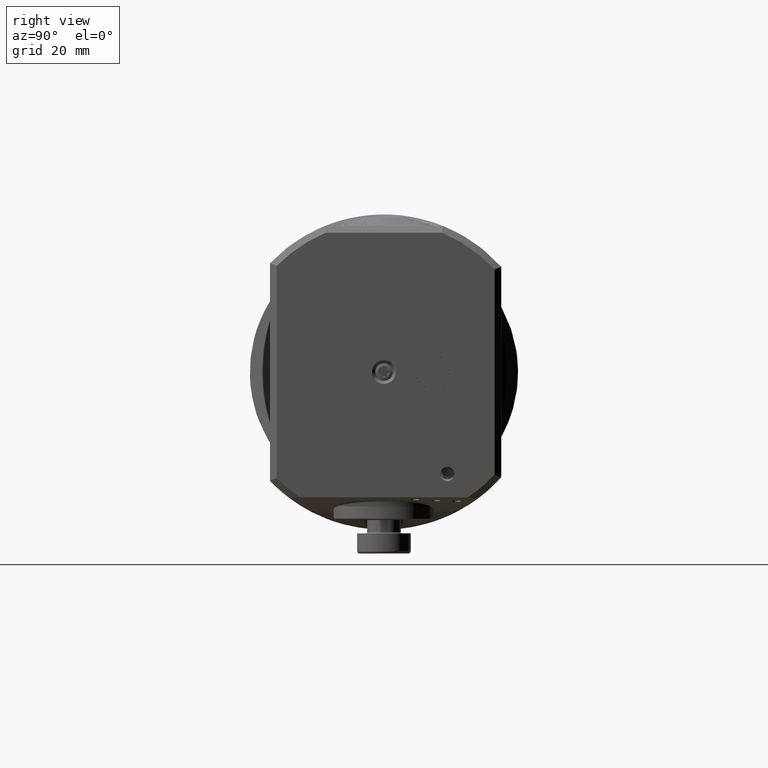
[diagram: clean part render]
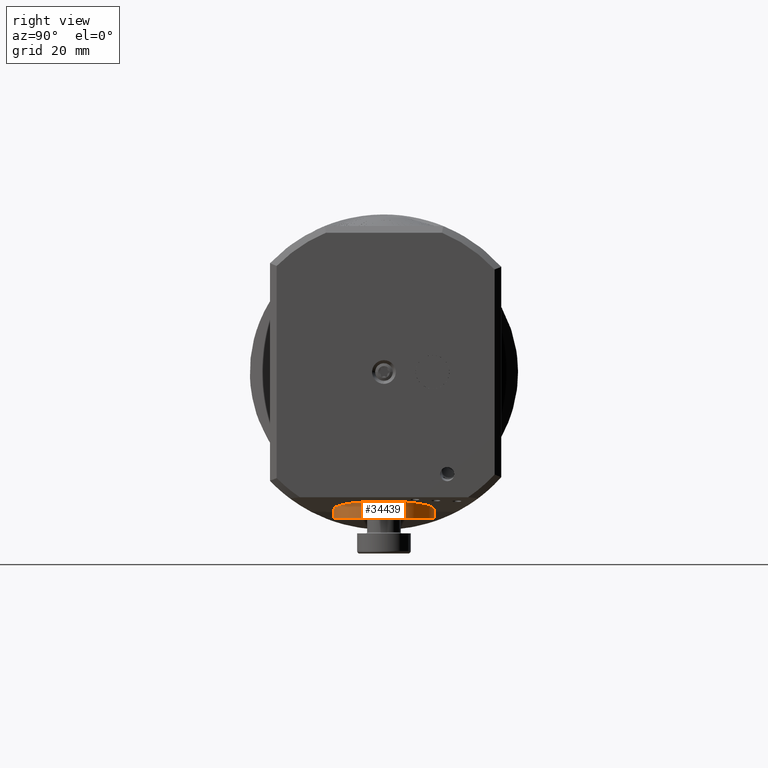
[diagram: same view with one face highlighted and labeled with its STEP entity id]
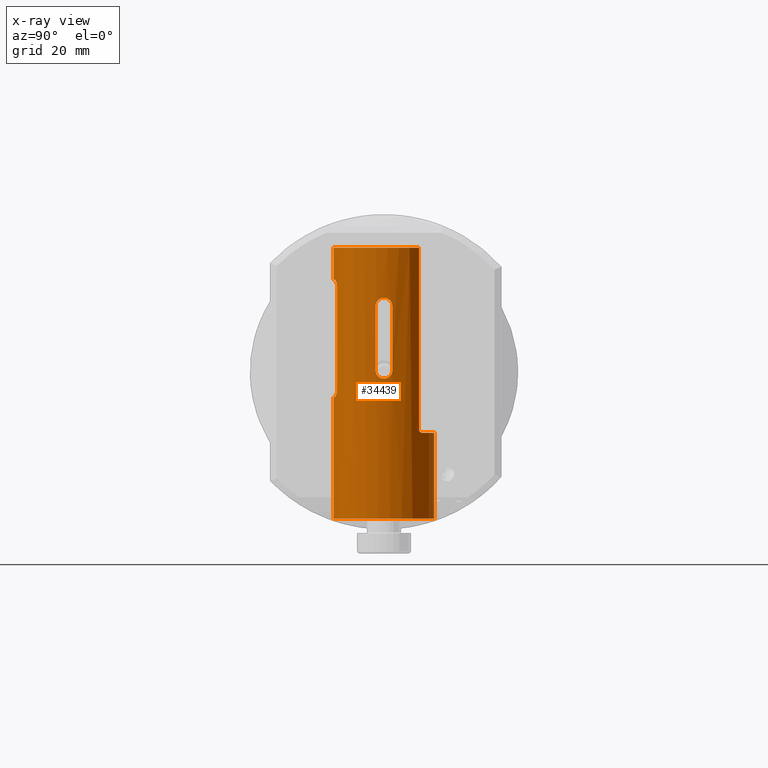
[diagram: x-ray of the same camera — body ghosted, the highlighted face saturated]
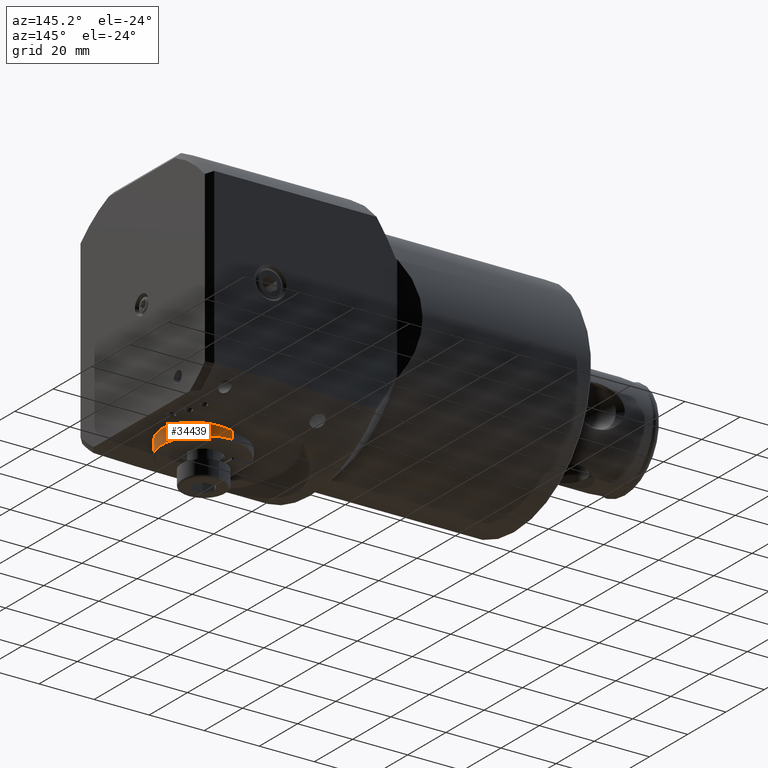
[diagram: same view with one face highlighted and labeled with its STEP entity id]
A machine part, right view. The second image highlights one B-rep face of the part: STEP entity #34439.
The next image is the same camera in x-ray: the body ghosted, the highlighted face saturated — about 0% of this face is hidden behind the body in this view.
A second angle (auxiliary view) of the same face is appended — the face is thin or edge-on in the first view.
In plain terms, the highlighted cylindrical surface (partial cylindrical patch) has radius 15 mm, axis along (-0, -0, -1).
Its self-contained STEP definition (entity closure, byte-faithful):
#62 = CARTESIAN_POINT ( 'NONE',  ( -36.69999999999999600, 0.0000000000000000000, 0.0000000000000000000 ) ) ;
#250 = LINE ( 'NONE', #6312, #1972 ) ;
#355 = EDGE_CURVE ( 'NONE', #2402, #25794, #25545, .T. ) ;
#487 = CARTESIAN_POINT ( 'NONE',  ( -71.70000000000000300, 0.0000000000000000000, 0.0000000000000000000 ) ) ;
#640 = CARTESIAN_POINT ( 'NONE',  ( -65.27439276141153400, 14.86793546203598600, -1.988184914714679500 ) ) ;
#693 = CARTESIAN_POINT ( 'NONE',  ( -71.62103553861182100, 3.643993573957646300, 14.55156011892306500 ) ) ;
#791 = CARTESIAN_POINT ( 'NONE',  ( -26.08365138635638300, 10.12319895152375300, -11.07016881742111500 ) ) ;
#910 = CARTESIAN_POINT ( 'NONE',  ( -36.69999999999999600, 2.999999999999992500, 14.69693845669905300 ) ) ;
#942 = DIRECTION ( 'NONE',  ( 1.000000000000000000, 0.0000000000000000000, 0.0000000000000000000 ) ) ;
#1052 = CARTESIAN_POINT ( 'NONE',  ( -70.86602314674337300, 4.870990932716868100, 14.18760841580626500 ) ) ;
#1258 = DIRECTION ( 'NONE',  ( -1.000000000000000000, -0.0000000000000000000, -0.0000000000000000000 ) ) ;
#1349 = EDGE_CURVE ( 'NONE', #34556, #23968, #9331, .T. ) ;
#1350 = CARTESIAN_POINT ( 'NONE',  ( -66.17004158267620500, 14.98684790557083200, 0.6481895724727199100 ) ) ;
#1447 = CARTESIAN_POINT ( 'NONE',  ( -36.69999999999999600, 1.836970198721028800E-015, 14.99999999999999300 ) ) ;
#1461 = CARTESIAN_POINT ( 'NONE',  ( -64.40195296655838300, 14.80369322509446700, 2.419034972733008700 ) ) ;
#1567 = B_SPLINE_CURVE_WITH_KNOTS ( 'NONE', 3,
 ( #17075, #11177, #13902, #32823, #22051, #3148, #11407, #640, #6094, #25000, #30558, #8797, #11533, #3511, #22411, #30780, #28172, #1350, #33865, #9136, #4088, #33398, #28286, #6320, #11877, #22532, #20215, #22974, #1461, #12109, #14587, #33527 ),
 .UNSPECIFIED., .F., .F.,
 ( 4, 2, 2, 2, 2, 2, 2, 2, 2, 2, 2, 2, 2, 2, 2, 4 ),
 ( 0.0000000000000000000, 0.0004892401012912576600, 0.0009784802025825153200, 0.001467720303873773000, 0.001956960405165030600, 0.002935440607747515600, 0.003424680709038758100, 0.003913920810330000600, 0.004403160911621243500, 0.004892401012912486400, 0.005381641114203729300, 0.005870881215494972200, 0.006360121316786215100, 0.006849361418077458100, 0.007338601519368701000, 0.007827841620659943900 ),
 .UNSPECIFIED. ) ;
#1585 = ORIENTED_EDGE ( 'NONE', *, *, #12999, .T. ) ;
#1972 = VECTOR ( 'NONE', #17180, 1000.000000000000000 ) ;
#2064 = CARTESIAN_POINT ( 'NONE',  ( -81.19999999999998900, 0.0000000000000000000, -1.232595164407830900E-028 ) ) ;
#2315 = DIRECTION ( 'NONE',  ( 0.0000000000000000000, 5.852798276616345200E-036, -1.000000000000000000 ) ) ;
#2363 = CARTESIAN_POINT ( 'NONE',  ( -42.46587615900763500, 14.95008997908091400, 1.259190540869073100 ) ) ;
#2402 = VERTEX_POINT ( 'NONE', #1447 ) ;
#2702 = CARTESIAN_POINT ( 'NONE',  ( -44.65000000000000600, 14.79019945774903300, 2.500000000000000000 ) ) ;
#2727 = CARTESIAN_POINT ( 'NONE',  ( 8.315476190476179100, 1.836970198721028800E-015, 14.99999999999999300 ) ) ;
#2909 = DIRECTION ( 'NONE',  ( 1.000000000000000000, 0.0000000000000000000, 0.0000000000000000000 ) ) ;
#3028 = CIRCLE ( 'NONE', #27878, 14.99999999999999300 ) ;
#3036 = CARTESIAN_POINT ( 'NONE',  ( -44.65000000000000600, 14.79019945774903300, -2.500000000000000000 ) ) ;
#3148 = CARTESIAN_POINT ( 'NONE',  ( -64.85942039942538900, 14.83098181101911600, -2.246333638700845000 ) ) ;
#3433 = VERTEX_POINT ( 'NONE', #22031 ) ;
#3442 = CARTESIAN_POINT ( 'NONE',  ( -69.87085199577855100, 5.430602251701269100, 13.98310576458394600 ) ) ;
#3511 = CARTESIAN_POINT ( 'NONE',  ( -66.23389635983521400, 14.99729083760842000, -0.3276336015289716400 ) ) ;
#3661 = CARTESIAN_POINT ( 'NONE',  ( -26.00000000000000000, 9.615697287706293400, -11.51253081086854400 ) ) ;
#3937 = AXIS2_PLACEMENT_3D ( 'NONE', #4066, #31229, #22960 ) ;
#4066 = CARTESIAN_POINT ( 'NONE',  ( 8.315476190476179100, 0.0000000000000000000, 0.0000000000000000000 ) ) ;
#4088 = CARTESIAN_POINT ( 'NONE',  ( -65.91934541202428500, 14.94817897732823800, 1.253158173683135900 ) ) ;
#4269 = VERTEX_POINT ( 'NONE', #15585 ) ;
#4679 = ORIENTED_EDGE ( 'NONE', *, *, #11589, .F. ) ;
#5051 = DIRECTION ( 'NONE',  ( 1.000000000000000000, -0.0000000000000000000, -0.0000000000000000000 ) ) ;
#5059 = CARTESIAN_POINT ( 'NONE',  ( -43.84315385433006200, 14.81142155766626800, 2.371882740827993900 ) ) ;
#5289 = VECTOR ( 'NONE', #21154, 1000.000000000000000 ) ;
#5311 = CARTESIAN_POINT ( 'NONE',  ( -42.22995841732377900, 14.98684790557083200, -0.6481895724727185800 ) ) ;
#5596 = ORIENTED_EDGE ( 'NONE', *, *, #20045, .T. ) ;
#5816 = ORIENTED_EDGE ( 'NONE', *, *, #18937, .T. ) ;
#6094 = CARTESIAN_POINT ( 'NONE',  ( -65.40272250051258100, 14.88181563152256900, -1.882815057245365200 ) ) ;
#6113 = EDGE_CURVE ( 'NONE', #22004, #30293, #33902, .T. ) ;
#6312 = CARTESIAN_POINT ( 'NONE',  ( 8.315476190476179100, 14.79019945774903300, 2.499999999999992900 ) ) ;
#6320 = CARTESIAN_POINT ( 'NONE',  ( -65.40247953690503400, 14.88177912671609200, 1.883189249685687700 ) ) ;
#6929 = EDGE_CURVE ( 'NONE', #30293, #19441, #32509, .T. ) ;
#7056 = EDGE_CURVE ( 'NONE', #22454, #34314, #33748, .T. ) ;
#7550 = CARTESIAN_POINT ( 'NONE',  ( -44.32192118619911300, 14.79297421678855100, 2.483738080278603500 ) ) ;
#7688 = CARTESIAN_POINT ( 'NONE',  ( -42.15012643082874200, 14.99997892820125500, 0.1652582995193745700 ) ) ;
#7752 = ORIENTED_EDGE ( 'NONE', *, *, #20365, .T. ) ;
#7804 = CARTESIAN_POINT ( 'NONE',  ( -42.66135259936607600, 14.92302629179534200, -1.523727810631438900 ) ) ;
#7904 = EDGE_LOOP ( 'NONE', ( #31844, #16660, #4679, #14656 ) ) ;
#7910 = VERTEX_POINT ( 'NONE', #21290 ) ;
#7919 = CARTESIAN_POINT ( 'NONE',  ( -42.40254796129772100, 14.95985313340195300, -1.107177897277891600 ) ) ;
#8012 = CARTESIAN_POINT ( 'NONE',  ( -26.00000000000000000, 9.615697287706293400, -11.51253081086854400 ) ) ;
#8026 = CARTESIAN_POINT ( 'NONE',  ( -42.14987504960765800, 15.00002082505937100, -0.1614106558651979000 ) ) ;
#8706 = CARTESIAN_POINT ( 'NONE',  ( -38.86613687932003800, 5.483139256648417600, 13.96196367605907300 ) ) ;
#8797 = CARTESIAN_POINT ( 'NONE',  ( -66.12133664322259100, 14.97896644742040500, -0.8082400430942695600 ) ) ;
#8813 = CARTESIAN_POINT ( 'NONE',  ( -39.19999999999999600, 5.499999999999991100, 13.95528573695285800 ) ) ;
#8828 = CARTESIAN_POINT ( 'NONE',  ( -26.82716649990155500, 10.75975848779951800, -10.45120075800986600 ) ) ;
#8932 = CARTESIAN_POINT ( 'NONE',  ( -36.69999999999999600, 3.164942454939800400, 14.66326971907201200 ) ) ;
#8946 = LINE ( 'NONE', #30606, #19919 ) ;
#8963 = CARTESIAN_POINT ( 'NONE',  ( -70.47120695929369600, 5.158889334905638600, 14.08529109122957500 ) ) ;
#9091 = CARTESIAN_POINT ( 'NONE',  ( -81.19999999999998900, 1.836970198721028400E-015, 14.99999999999998800 ) ) ;
#9136 = CARTESIAN_POINT ( 'NONE',  ( -65.99745203870230600, 14.95985313340195000, 1.107177897277893200 ) ) ;
#9159 = CARTESIAN_POINT ( 'NONE',  ( -37.93249541261423000, 5.161098648160028700, 14.08448203711480100 ) ) ;
#9331 = B_SPLINE_CURVE_WITH_KNOTS ( 'NONE', 3,
 ( #22468, #14299, #27650, #693, #33224, #14641, #27764, #14184, #20048, #1052, #11575, #8963, #30605, #3442, #17010, #33577 ),
 .UNSPECIFIED., .F., .F.,
 ( 4, 2, 2, 2, 2, 2, 2, 4 ),
 ( 0.0000000000000000000, 0.0004980600485306298600, 0.0009961200970612597200, 0.001494180145591890900, 0.001992240194122522000, 0.002490300242653153200, 0.002988360291183784400, 0.003984480388245008500 ),
 .UNSPECIFIED. ) ;
#9531 = VERTEX_POINT ( 'NONE', #11911 ) ;
#9743 = DIRECTION ( 'NONE',  ( 1.000000000000000000, 0.0000000000000000000, 0.0000000000000000000 ) ) ;
#9943 = CARTESIAN_POINT ( 'NONE',  ( -71.70000000000000300, 2.999999999999992500, 14.69693845669905300 ) ) ;
#10212 = DIRECTION ( 'NONE',  ( 1.000000000000000000, 0.0000000000000000000, 0.0000000000000000000 ) ) ;
#10263 = CARTESIAN_POINT ( 'NONE',  ( -43.99804703344163700, 14.80369322509447000, -2.419034972733006900 ) ) ;
#10334 = VECTOR ( 'NONE', #2909, 1000.000000000000000 ) ;
#10383 = CARTESIAN_POINT ( 'NONE',  ( -42.65205998376171000, 14.92278605409199200, 1.537586584708477300 ) ) ;
#10734 = CARTESIAN_POINT ( 'NONE',  ( -26.99999999999999600, 10.75975848779951200, -10.45120075800986600 ) ) ;
#10735 = CARTESIAN_POINT ( 'NONE',  ( -42.76488841548087500, 14.90940330940715500, -1.650286243029786200 ) ) ;
#10824 = B_SPLINE_CURVE_WITH_KNOTS ( 'NONE', 3,
 ( #2702, #32136, #7550, #24095, #5059, #18646, #35008, #12986, #26571, #10383, #2363, #15950, #23981, #13102, #7688, #8026, #26922, #5311, #35126, #7919, #24218, #7804, #10735, #29678, #26691, #13464, #16191, #21612, #10263, #18876, #23858, #26457 ),
 .UNSPECIFIED., .F., .F.,
 ( 4, 2, 2, 2, 2, 2, 2, 2, 2, 2, 2, 2, 2, 2, 2, 4 ),
 ( 0.0000000000000000000, 0.0004892401012912463800, 0.0009784802025824927700, 0.001467720303873739400, 0.001956960405164985500, 0.002935440607747477000, 0.003424680709038723400, 0.003913920810329969300, 0.004403160911621215700, 0.004892401012912462100, 0.005381641114203708500, 0.005870881215494954000, 0.006360121316786201300, 0.006849361418077447700, 0.007338601519368694000, 0.007827841620659940400 ),
 .UNSPECIFIED. ) ;
#11012 = CARTESIAN_POINT ( 'NONE',  ( -26.00000000000001100, 0.0000000000000000000, 0.0000000000000000000 ) ) ;
#11177 = CARTESIAN_POINT ( 'NONE',  ( -63.91545102669287100, 14.79019945774903300, -2.499999999999998200 ) ) ;
#11252 = FACE_OUTER_BOUND ( 'NONE', #29531, .T. ) ;
#11407 = CARTESIAN_POINT ( 'NONE',  ( -65.00288271435107400, 14.84255526208823500, -2.169547752464354500 ) ) ;
#11432 = CARTESIAN_POINT ( 'NONE',  ( -37.53457246494458800, 4.871495484013774300, 14.18743285241416200 ) ) ;
#11533 = CARTESIAN_POINT ( 'NONE',  ( -66.16951081223518800, 14.98676162190930200, -0.6504247325638559100 ) ) ;
#11554 = CARTESIAN_POINT ( 'NONE',  ( -36.71616248363587700, 3.327192483170373200, 14.62726034686274100 ) ) ;
#11575 = CARTESIAN_POINT ( 'NONE',  ( -70.74174199274330000, 4.974791614712278200, 14.15136080681510400 ) ) ;
#11589 = EDGE_CURVE ( 'NONE', #13476, #22454, #10824, .T. ) ;
#11668 = CARTESIAN_POINT ( 'NONE',  ( -38.54139805094114700, 5.417372255974344200, 13.98761322168980200 ) ) ;
#11877 = CARTESIAN_POINT ( 'NONE',  ( -65.27659873016541800, 14.86816715412010800, 1.986445344260269900 ) ) ;
#11911 = CARTESIAN_POINT ( 'NONE',  ( -71.70000000000000300, 1.836970198721028800E-015, 14.99999999999999300 ) ) ;
#12109 = CARTESIAN_POINT ( 'NONE',  ( -64.08109186053259500, 14.79303593763683000, 2.483374931378408100 ) ) ;
#12480 = CIRCLE ( 'NONE', #23667, 14.99999999999998800 ) ;
#12943 = CIRCLE ( 'NONE', #22715, 15.00000000000000000 ) ;
#12986 = CARTESIAN_POINT ( 'NONE',  ( -43.12560723858849300, 14.86793546203598600, 1.988184914714682600 ) ) ;
#12999 = EDGE_CURVE ( 'NONE', #7910, #3433, #20104, .T. ) ;
#13102 = CARTESIAN_POINT ( 'NONE',  ( -42.16610364016476400, 14.99729083760842100, 0.3276336015289744200 ) ) ;
#13464 = CARTESIAN_POINT ( 'NONE',  ( -43.39373024509141200, 14.84284691482774200, -2.167545868390760200 ) ) ;
#13476 = VERTEX_POINT ( 'NONE', #23953 ) ;
#13654 = EDGE_CURVE ( 'NONE', #24883, #13476, #250, .T. ) ;
#13751 = VECTOR ( 'NONE', #9743, 1000.000000000000000 ) ;
#13902 = CARTESIAN_POINT ( 'NONE',  ( -64.07807881380088600, 14.79297421678855100, -2.483738080278602200 ) ) ;
#14152 = CARTESIAN_POINT ( 'NONE',  ( -36.82725338411666600, 3.803757810166946900, 14.51052259814373200 ) ) ;
#14184 = CARTESIAN_POINT ( 'NONE',  ( -71.19717140609817800, 4.512389059029986000, 14.30587796267587900 ) ) ;
#14286 = CARTESIAN_POINT ( 'NONE',  ( -26.13653148447162900, 10.24293985251996700, -10.95924295554992700 ) ) ;
#14299 = CARTESIAN_POINT ( 'NONE',  ( -71.70000000000000300, 3.165062364740157000, 14.66324524258650200 ) ) ;
#14587 = CARTESIAN_POINT ( 'NONE',  ( -63.91545113589965200, 14.79019945774902700, 2.500000000000001800 ) ) ;
#14641 = CARTESIAN_POINT ( 'NONE',  ( -71.45034177691020700, 4.101039313533431300, 14.42933371791927200 ) ) ;
#14656 = ORIENTED_EDGE ( 'NONE', *, *, #13654, .F. ) ;
#15034 = LINE ( 'NONE', #16275, #10334 ) ;
#15515 = CARTESIAN_POINT ( 'NONE',  ( -69.20000000000000300, 5.499999999999991100, 13.95528573695285800 ) ) ;
#15585 = CARTESIAN_POINT ( 'NONE',  ( -81.19999999999998900, 10.75975848779952300, -10.45120075800985800 ) ) ;
#15950 = CARTESIAN_POINT ( 'NONE',  ( -42.27866335677738600, 14.97896644742040300, 0.8082400430942697800 ) ) ;
#16089 = ORIENTED_EDGE ( 'NONE', *, *, #6929, .F. ) ;
#16191 = CARTESIAN_POINT ( 'NONE',  ( -43.53996152943845700, 14.83102944298643100, -2.246019171715618200 ) ) ;
#16260 = DIRECTION ( 'NONE',  ( 1.000000000000000000, 0.0000000000000000000, 0.0000000000000000000 ) ) ;
#16275 = CARTESIAN_POINT ( 'NONE',  ( 8.315476190476179100, 1.836970198721028800E-015, 14.99999999999999300 ) ) ;
#16301 = CARTESIAN_POINT ( 'NONE',  ( -26.66306895278904700, 10.71278728962730900, -10.49989051831716000 ) ) ;
#16660 = ORIENTED_EDGE ( 'NONE', *, *, #7056, .F. ) ;
#16861 = CARTESIAN_POINT ( 'NONE',  ( -36.77957295083645300, 3.646557521353275300, 14.55093032484281900 ) ) ;
#17010 = CARTESIAN_POINT ( 'NONE',  ( -69.53726897942698300, 5.499999999999991100, 13.95528573695286100 ) ) ;
#17075 = CARTESIAN_POINT ( 'NONE',  ( -63.75000000000000000, 14.79019945774903100, -2.499999999999998200 ) ) ;
#17180 = DIRECTION ( 'NONE',  ( 1.000000000000000000, 0.0000000000000000000, 0.0000000000000000000 ) ) ;
#17208 = CARTESIAN_POINT ( 'NONE',  ( -39.03149128155239800, 5.499999999999991100, 13.95528573695285800 ) ) ;
#18620 = CARTESIAN_POINT ( 'NONE',  ( 8.315476190476179100, 5.499999999999991100, 13.95528573695285800 ) ) ;
#18646 = CARTESIAN_POINT ( 'NONE',  ( -43.54057960057463100, 14.83098181101911800, 2.246333638700847200 ) ) ;
#18831 = CYLINDRICAL_SURFACE ( 'NONE', #3937, 14.99999999999999300 ) ;
#18857 = DIRECTION ( 'NONE',  ( 1.000000000000000000, 0.0000000000000000000, 0.0000000000000000000 ) ) ;
#18876 = CARTESIAN_POINT ( 'NONE',  ( -44.31890813946738900, 14.79303593763682500, -2.483374931378404600 ) ) ;
#18937 = EDGE_CURVE ( 'NONE', #9531, #34556, #26853, .T. ) ;
#19129 = CARTESIAN_POINT ( 'NONE',  ( -0.3999999999999975800, 1.836970198721029600E-015, 15.00000000000000000 ) ) ;
#19153 = DIRECTION ( 'NONE',  ( -1.000000000000000000, 6.052560795486985300E-017, -1.154897398495043300E-015 ) ) ;
#19290 = CARTESIAN_POINT ( 'NONE',  ( -0.3999999999999975800, 0.0000000000000000000, -1.232595164407830900E-028 ) ) ;
#19441 = VERTEX_POINT ( 'NONE', #30575 ) ;
#19548 = CARTESIAN_POINT ( 'NONE',  ( -38.38031162105646400, 5.367558763306186100, 14.00692733276443000 ) ) ;
#19919 = VECTOR ( 'NONE', #942, 1000.000000000000000 ) ;
#20045 = EDGE_CURVE ( 'NONE', #31064, #9531, #15034, .T. ) ;
#20048 = CARTESIAN_POINT ( 'NONE',  ( -71.09354140923473200, 4.640347867772832500, 14.26471019309270000 ) ) ;
#20078 = ORIENTED_EDGE ( 'NONE', *, *, #20267, .F. ) ;
#20104 = B_SPLINE_CURVE_WITH_KNOTS ( 'NONE', 3,
 ( #8813, #17208, #8706, #11668, #19548, #25368, #9159, #27624, #11432, #32952, #30344, #14152, #16861, #11554, #8932, #910 ),
 .UNSPECIFIED., .F., .F.,
 ( 4, 2, 2, 2, 2, 2, 2, 4 ),
 ( 0.0000000000000000000, 0.0004980481835597941700, 0.0009960963671195883400, 0.001494144550679382500, 0.001992192734239176700, 0.002988289101358750300, 0.003486337284918541000, 0.003984385468478330800 ),
 .UNSPECIFIED. ) ;
#20215 = CARTESIAN_POINT ( 'NONE',  ( -64.86003847056154800, 14.83102944298642700, 2.246019171715619900 ) ) ;
#20267 = EDGE_CURVE ( 'NONE', #4269, #22004, #28971, .T. ) ;
#20365 = EDGE_CURVE ( 'NONE', #4269, #31064, #12480, .T. ) ;
#21002 = EDGE_CURVE ( 'NONE', #34314, #24883, #1567, .T. ) ;
#21154 = DIRECTION ( 'NONE',  ( 1.000000000000000000, 0.0000000000000000000, 0.0000000000000000000 ) ) ;
#21290 = CARTESIAN_POINT ( 'NONE',  ( -39.19999999999999600, 5.499999999999991100, 13.95528573695285800 ) ) ;
#21612 = CARTESIAN_POINT ( 'NONE',  ( -43.84226400190127700, 14.81147144530982400, -2.371571226679934300 ) ) ;
#21714 = DIRECTION ( 'NONE',  ( 0.0000000000000000000, -1.509903313490212900E-014, 1.000000000000000000 ) ) ;
#21800 = DIRECTION ( 'NONE',  ( 0.0000000000000000000, 5.852798276616345900E-036, -1.000000000000000000 ) ) ;
#22004 = VERTEX_POINT ( 'NONE', #30497 ) ;
#22031 = CARTESIAN_POINT ( 'NONE',  ( -36.69999999999999600, 2.999999999999992500, 14.69693845669905300 ) ) ;
#22051 = CARTESIAN_POINT ( 'NONE',  ( -64.55684614566992300, 14.81142155766626600, -2.371882740827993000 ) ) ;
#22337 = VECTOR ( 'NONE', #18857, 1000.000000000000000 ) ;
#22411 = CARTESIAN_POINT ( 'NONE',  ( -66.24987356917128500, 14.99997892820125500, -0.1652582995193718200 ) ) ;
#22448 = CARTESIAN_POINT ( 'NONE',  ( -26.00000000000000400, 9.746847904246697800, -11.40298889967053400 ) ) ;
#22454 = VERTEX_POINT ( 'NONE', #3036 ) ;
#22468 = CARTESIAN_POINT ( 'NONE',  ( -71.70000000000000300, 2.999999999999992500, 14.69693845669905300 ) ) ;
#22532 = CARTESIAN_POINT ( 'NONE',  ( -65.00626975490857300, 14.84284691482774200, 2.167545868390763400 ) ) ;
#22715 = AXIS2_PLACEMENT_3D ( 'NONE', #19290, #16260, #21800 ) ;
#22960 = DIRECTION ( 'NONE',  ( 0.0000000000000000000, 5.852798276616345900E-036, -1.000000000000000000 ) ) ;
#22974 = CARTESIAN_POINT ( 'NONE',  ( -64.55773599809873500, 14.81147144530982600, 2.371571226679937400 ) ) ;
#23124 = EDGE_CURVE ( 'NONE', #3433, #2402, #3028, .T. ) ;
#23667 = AXIS2_PLACEMENT_3D ( 'NONE', #2064, #10212, #2315 ) ;
#23858 = CARTESIAN_POINT ( 'NONE',  ( -44.48454886410035400, 14.79019945774903300, -2.500000000000000000 ) ) ;
#23953 = CARTESIAN_POINT ( 'NONE',  ( -44.65000000000000600, 14.79019945774903300, 2.500000000000000000 ) ) ;
#23968 = VERTEX_POINT ( 'NONE', #15515 ) ;
#23981 = CARTESIAN_POINT ( 'NONE',  ( -42.23048918776483200, 14.98676162190930100, 0.6504247325638586900 ) ) ;
#24095 = CARTESIAN_POINT ( 'NONE',  ( -44.00206281058186900, 14.80352231977027900, 2.420076023198441700 ) ) ;
#24218 = CARTESIAN_POINT ( 'NONE',  ( -42.48065458797570700, 14.94817897732824200, -1.253158173683131400 ) ) ;
#24335 = CARTESIAN_POINT ( 'NONE',  ( -26.01534470489540500, 9.874650092547787100, -11.29243464484432600 ) ) ;
#24624 = DIRECTION ( 'NONE',  ( -1.000000000000000000, -0.0000000000000000000, -0.0000000000000000000 ) ) ;
#24735 = DIRECTION ( 'NONE',  ( 0.0000000000000000000, 5.852798276616345900E-036, -1.000000000000000000 ) ) ;
#24883 = VERTEX_POINT ( 'NONE', #28078 ) ;
#25000 = CARTESIAN_POINT ( 'NONE',  ( -65.74794001623827500, 14.92278605409199200, -1.537586584708479300 ) ) ;
#25368 = CARTESIAN_POINT ( 'NONE',  ( -38.07626735232287300, 5.239296423617812300, 14.05540726440732200 ) ) ;
#25545 = LINE ( 'NONE', #2727, #5289 ) ;
#25553 = ORIENTED_EDGE ( 'NONE', *, *, #6113, .F. ) ;
#25794 = VERTEX_POINT ( 'NONE', #19129 ) ;
#25942 = CARTESIAN_POINT ( 'NONE',  ( 8.315476190476179100, 10.75975848779950900, -10.45120075800987400 ) ) ;
#25956 = CARTESIAN_POINT ( 'NONE',  ( 8.315476190476179100, 14.79019945774903100, -2.500000000000004900 ) ) ;
#26250 = EDGE_CURVE ( 'NONE', #23968, #7910, #33721, .T. ) ;
#26457 = CARTESIAN_POINT ( 'NONE',  ( -44.65000000000000600, 14.79019945774903300, -2.500000000000000000 ) ) ;
#26571 = CARTESIAN_POINT ( 'NONE',  ( -42.99727749948741700, 14.88181563152256900, 1.882815057245363500 ) ) ;
#26691 = CARTESIAN_POINT ( 'NONE',  ( -43.12340126983459500, 14.86816715412010800, -1.986445344260267200 ) ) ;
#26853 = CIRCLE ( 'NONE', #27033, 14.99999999999999300 ) ;
#26922 = CARTESIAN_POINT ( 'NONE',  ( -42.16613501075684700, 14.99728622676845200, -0.3273617249412352200 ) ) ;
#27033 = AXIS2_PLACEMENT_3D ( 'NONE', #487, #24624, #24735 ) ;
#27052 = ORIENTED_EDGE ( 'NONE', *, *, #34124, .F. ) ;
#27624 = CARTESIAN_POINT ( 'NONE',  ( -37.66094412483271000, 4.976922421147602200, 14.15061188513511000 ) ) ;
#27650 = CARTESIAN_POINT ( 'NONE',  ( -71.68381815916333700, 3.326784569297188500, 14.62734068418326800 ) ) ;
#27764 = CARTESIAN_POINT ( 'NONE',  ( -71.37495177033289900, 4.243221254618641000, 14.38801142227032800 ) ) ;
#27878 = AXIS2_PLACEMENT_3D ( 'NONE', #62, #5051, #21714 ) ;
#27903 = ORIENTED_EDGE ( 'NONE', *, *, #1349, .T. ) ;
#28078 = CARTESIAN_POINT ( 'NONE',  ( -63.75000000000000000, 14.79019945774903100, 2.500000000000002700 ) ) ;
#28116 = AXIS2_PLACEMENT_3D ( 'NONE', #11012, #19153, #32659 ) ;
#28172 = CARTESIAN_POINT ( 'NONE',  ( -66.23386498924315900, 14.99728622676844700, 0.3273617249412365500 ) ) ;
#28286 = CARTESIAN_POINT ( 'NONE',  ( -65.63511158451916600, 14.90940330940715900, 1.650286243029791300 ) ) ;
#28303 = EDGE_CURVE ( 'NONE', #19441, #33855, #8946, .T. ) ;
#28971 = LINE ( 'NONE', #25942, #13751 ) ;
#29105 = VECTOR ( 'NONE', #1258, 1000.000000000000000 ) ;
#29531 = EDGE_LOOP ( 'NONE', ( #7752, #5596, #5816, #27903, #31519, #1585, #31110, #30476, #27052, #31174, #16089, #25553, #20078 ) ) ;
#29678 = CARTESIAN_POINT ( 'NONE',  ( -42.99752046309497200, 14.88177912671609000, -1.883189249685682100 ) ) ;
#30293 = VERTEX_POINT ( 'NONE', #8012 ) ;
#30344 = CARTESIAN_POINT ( 'NONE',  ( -37.01142927202879200, 4.250588122056226000, 14.38846269812100000 ) ) ;
#30476 = ORIENTED_EDGE ( 'NONE', *, *, #355, .T. ) ;
#30477 = CARTESIAN_POINT ( 'NONE',  ( -26.39372398093502500, 10.56148607542290400, -10.65206666746387800 ) ) ;
#30497 = CARTESIAN_POINT ( 'NONE',  ( -26.99999999999999600, 10.75975848779951200, -10.45120075800986600 ) ) ;
#30558 = CARTESIAN_POINT ( 'NONE',  ( -65.93412384099237000, 14.95008997908090900, -1.259190540869072400 ) ) ;
#30575 = CARTESIAN_POINT ( 'NONE',  ( -25.99999999999999300, -4.184540574645136500E-031, -14.99999999999999300 ) ) ;
#30605 = CARTESIAN_POINT ( 'NONE',  ( -70.32462992607382500, 5.238788725166586800, 14.05559549087117900 ) ) ;
#30606 = CARTESIAN_POINT ( 'NONE',  ( 8.315476190476179100, 8.779197414924514200E-035, -14.99999999999999300 ) ) ;
#30780 = CARTESIAN_POINT ( 'NONE',  ( -66.25012495039236200, 15.00002082505937300, 0.1614106558652007300 ) ) ;
#31064 = VERTEX_POINT ( 'NONE', #9091 ) ;
#31110 = ORIENTED_EDGE ( 'NONE', *, *, #23124, .T. ) ;
#31174 = ORIENTED_EDGE ( 'NONE', *, *, #28303, .F. ) ;
#31229 = DIRECTION ( 'NONE',  ( 1.000000000000000000, 0.0000000000000000000, 0.0000000000000000000 ) ) ;
#31519 = ORIENTED_EDGE ( 'NONE', *, *, #26250, .T. ) ;
#31844 = ORIENTED_EDGE ( 'NONE', *, *, #21002, .F. ) ;
#32136 = CARTESIAN_POINT ( 'NONE',  ( -44.48454897330713500, 14.79019945774903100, 2.500000000000000000 ) ) ;
#32382 = CARTESIAN_POINT ( 'NONE',  ( -26.29127067437568900, 10.46159210044751800, -10.75071689260611800 ) ) ;
#32509 = CIRCLE ( 'NONE', #28116, 14.99999999999999300 ) ;
#32659 = DIRECTION ( 'NONE',  ( 1.156482317317871900E-015, 8.881784197001252300E-016, -1.000000000000000000 ) ) ;
#32823 = CARTESIAN_POINT ( 'NONE',  ( -64.39793718941811600, 14.80352231977027300, -2.420076023198439100 ) ) ;
#32952 = CARTESIAN_POINT ( 'NONE',  ( -37.19377143789114400, 4.526310532426982100, 14.30284551179064700 ) ) ;
#33224 = CARTESIAN_POINT ( 'NONE',  ( -71.57378105312467700, 3.800930205873153800, 14.51127577314654400 ) ) ;
#33382 = CARTESIAN_POINT ( 'NONE',  ( -63.75000000000000000, 14.79019945774903100, -2.499999999999998200 ) ) ;
#33398 = CARTESIAN_POINT ( 'NONE',  ( -65.73864740063395100, 14.92302629179534400, 1.523727810631444700 ) ) ;
#33527 = CARTESIAN_POINT ( 'NONE',  ( -63.75000000000000000, 14.79019945774903100, 2.500000000000002700 ) ) ;
#33577 = CARTESIAN_POINT ( 'NONE',  ( -69.20000000000000300, 5.499999999999991100, 13.95528573695285800 ) ) ;
#33721 = LINE ( 'NONE', #18620, #22337 ) ;
#33748 = LINE ( 'NONE', #25956, #29105 ) ;
#33855 = VERTEX_POINT ( 'NONE', #34008 ) ;
#33865 = CARTESIAN_POINT ( 'NONE',  ( -66.12280674574314800, 14.97919814140040800, 0.8041590078108832300 ) ) ;
#33902 = B_SPLINE_CURVE_WITH_KNOTS ( 'NONE', 3,
 ( #10734, #8828, #16301, #30477, #32382, #14286, #791, #24335, #22448, #3661 ),
 .UNSPECIFIED., .F., .F.,
 ( 4, 2, 2, 2, 4 ),
 ( 0.0000000000000000000, 0.0005093972009465441000, 0.001018794401893088200, 0.001528191602839632300, 0.002037588803786176400 ),
 .UNSPECIFIED. ) ;
#34008 = CARTESIAN_POINT ( 'NONE',  ( -0.3999999999999975800, 8.779197414924518500E-035, -15.00000000000000000 ) ) ;
#34124 = EDGE_CURVE ( 'NONE', #33855, #25794, #12943, .T. ) ;
#34314 = VERTEX_POINT ( 'NONE', #33382 ) ;
#34439 = ADVANCED_FACE ( 'NONE', ( #34548, #11252 ), #18831, .T. ) ;
#34548 = FACE_BOUND ( 'NONE', #7904, .T. ) ;
#34556 = VERTEX_POINT ( 'NONE', #9943 ) ;
#35008 = CARTESIAN_POINT ( 'NONE',  ( -43.39711728564893200, 14.84255526208823600, 2.169547752464356700 ) ) ;
#35126 = CARTESIAN_POINT ( 'NONE',  ( -42.27719325425682200, 14.97919814140041200, -0.8041590078108816800 ) ) ;